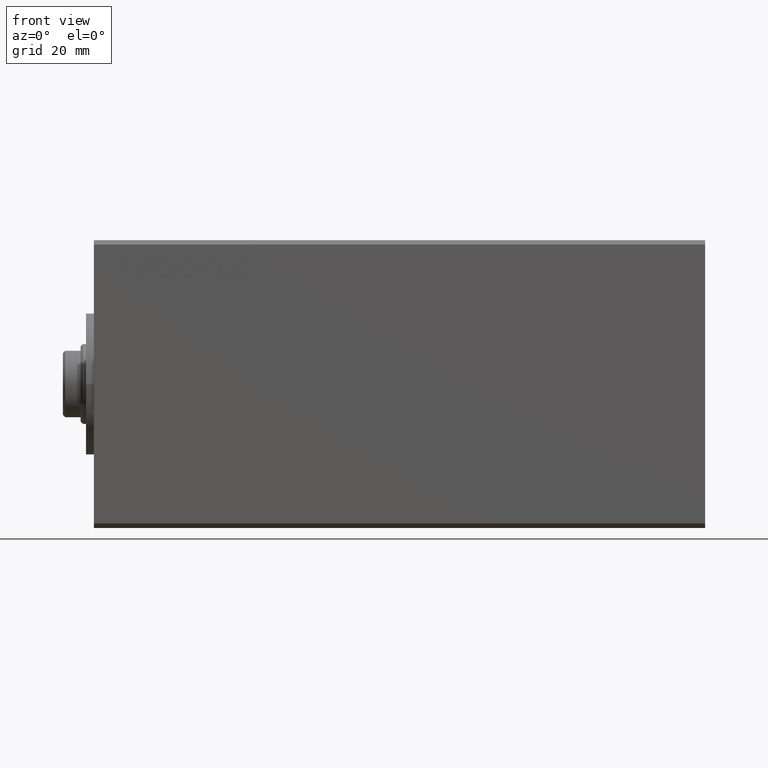
[diagram: clean part render]
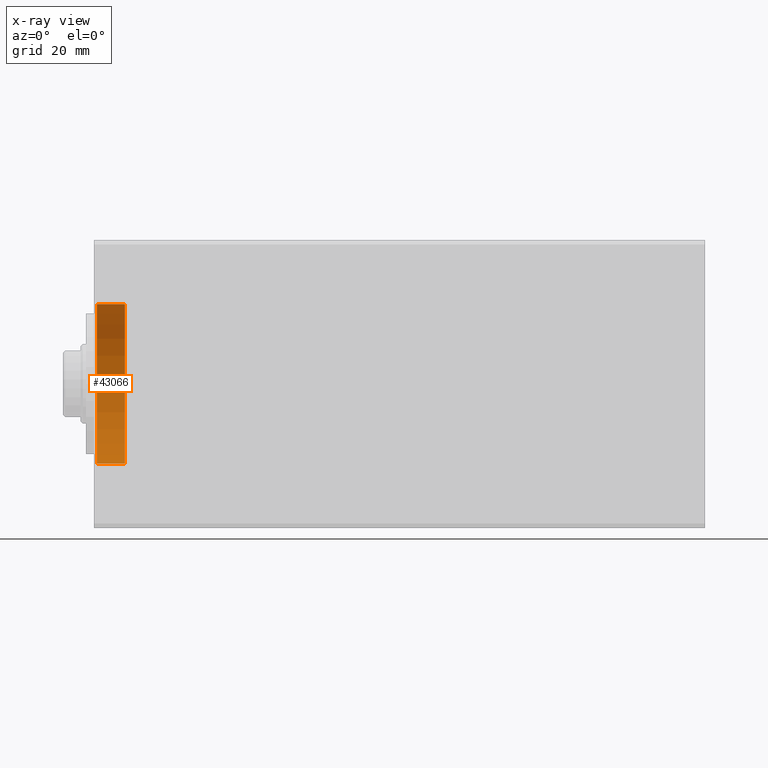
[diagram: x-ray — body ghosted, one internal face saturated and labeled with its STEP entity id]
A machine part, front view, then the same camera in x-ray: the body is ghosted and one INTERNAL B-rep face — a face not visible from any outside direction — is saturated and labeled: STEP entity #43066.
In plain terms, the highlighted cylindrical surface (partial cylindrical patch) has radius 18 mm, axis along (-1, -0, -0).
Its self-contained STEP definition (entity closure, byte-faithful):
#325 = LINE ( 'NONE', #34243, #42529 ) ;
#690 = CIRCLE ( 'NONE', #37717, 18.00000000000000000 ) ;
#1467 = AXIS2_PLACEMENT_3D ( 'NONE', #32226, #35150, #19049 ) ;
#4148 = VERTEX_POINT ( 'NONE', #15088 ) ;
#4627 = EDGE_CURVE ( 'NONE', #12371, #40478, #690, .T. ) ;
#7698 = ORIENTED_EDGE ( 'NONE', *, *, #16473, .T. ) ;
#7991 = CARTESIAN_POINT ( 'NONE',  ( 7.000000000000000000, 2.204364238465235428E-15, -18.00000000000000000 ) ) ;
#9560 = LINE ( 'NONE', #29062, #34903 ) ;
#9656 = EDGE_CURVE ( 'NONE', #40478, #22323, #9560, .T. ) ;
#10840 = EDGE_CURVE ( 'NONE', #4148, #22323, #19248, .T. ) ;
#11780 = CARTESIAN_POINT ( 'NONE',  ( 7.000000000000000000, 0.000000000000000000, 0.000000000000000000 ) ) ;
#12371 = VERTEX_POINT ( 'NONE', #40811 ) ;
#13738 = EDGE_LOOP ( 'NONE', ( #23734, #15237, #7698, #25242 ) ) ;
#15088 = CARTESIAN_POINT ( 'NONE',  ( 0.7000000000000027311, 0.000000000000000000, 18.00000000000000000 ) ) ;
#15142 = DIRECTION ( 'NONE',  ( -1.000000000000000000, 0.000000000000000000, 0.000000000000000000 ) ) ;
#15237 = ORIENTED_EDGE ( 'NONE', *, *, #4627, .F. ) ;
#16411 = AXIS2_PLACEMENT_3D ( 'NONE', #36574, #29658, #40132 ) ;
#16473 = EDGE_CURVE ( 'NONE', #12371, #4148, #325, .T. ) ;
#19049 = DIRECTION ( 'NONE',  ( 0.000000000000000000, 0.000000000000000000, 1.000000000000000000 ) ) ;
#19248 = CIRCLE ( 'NONE', #16411, 18.00000000000000000 ) ;
#22181 = FACE_OUTER_BOUND ( 'NONE', #13738, .T. ) ;
#22323 = VERTEX_POINT ( 'NONE', #37130 ) ;
#23734 = ORIENTED_EDGE ( 'NONE', *, *, #9656, .F. ) ;
#25242 = ORIENTED_EDGE ( 'NONE', *, *, #10840, .T. ) ;
#28743 = DIRECTION ( 'NONE',  ( 0.000000000000000000, 0.000000000000000000, 1.000000000000000000 ) ) ;
#29062 = CARTESIAN_POINT ( 'NONE',  ( 7.000000000000000000, 2.204364238465235428E-15, -18.00000000000000000 ) ) ;
#29330 = CYLINDRICAL_SURFACE ( 'NONE', #1467, 18.00000000000000000 ) ;
#29658 = DIRECTION ( 'NONE',  ( -1.000000000000000000, 0.000000000000000000, 0.000000000000000000 ) ) ;
#32226 = CARTESIAN_POINT ( 'NONE',  ( 7.000000000000000000, 0.000000000000000000, 0.000000000000000000 ) ) ;
#34243 = CARTESIAN_POINT ( 'NONE',  ( 7.000000000000000000, 0.000000000000000000, 18.00000000000000000 ) ) ;
#34903 = VECTOR ( 'NONE', #39310, 1000.000000000000000 ) ;
#35150 = DIRECTION ( 'NONE',  ( -1.000000000000000000, -0.000000000000000000, -0.000000000000000000 ) ) ;
#36574 = CARTESIAN_POINT ( 'NONE',  ( 0.7000000000000027311, 0.000000000000000000, 0.000000000000000000 ) ) ;
#37130 = CARTESIAN_POINT ( 'NONE',  ( 0.7000000000000027311, 2.204364238465235428E-15, -18.00000000000000000 ) ) ;
#37717 = AXIS2_PLACEMENT_3D ( 'NONE', #11780, #15142, #28743 ) ;
#39310 = DIRECTION ( 'NONE',  ( -1.000000000000000000, -0.000000000000000000, -0.000000000000000000 ) ) ;
#40132 = DIRECTION ( 'NONE',  ( 0.000000000000000000, 0.000000000000000000, -1.000000000000000000 ) ) ;
#40478 = VERTEX_POINT ( 'NONE', #7991 ) ;
#40811 = CARTESIAN_POINT ( 'NONE',  ( 7.000000000000000000, 0.000000000000000000, 18.00000000000000000 ) ) ;
#42529 = VECTOR ( 'NONE', #42682, 1000.000000000000000 ) ;
#42682 = DIRECTION ( 'NONE',  ( -1.000000000000000000, -0.000000000000000000, -0.000000000000000000 ) ) ;
#43066 = ADVANCED_FACE ( 'NONE', ( #22181 ), #29330, .F. ) ;